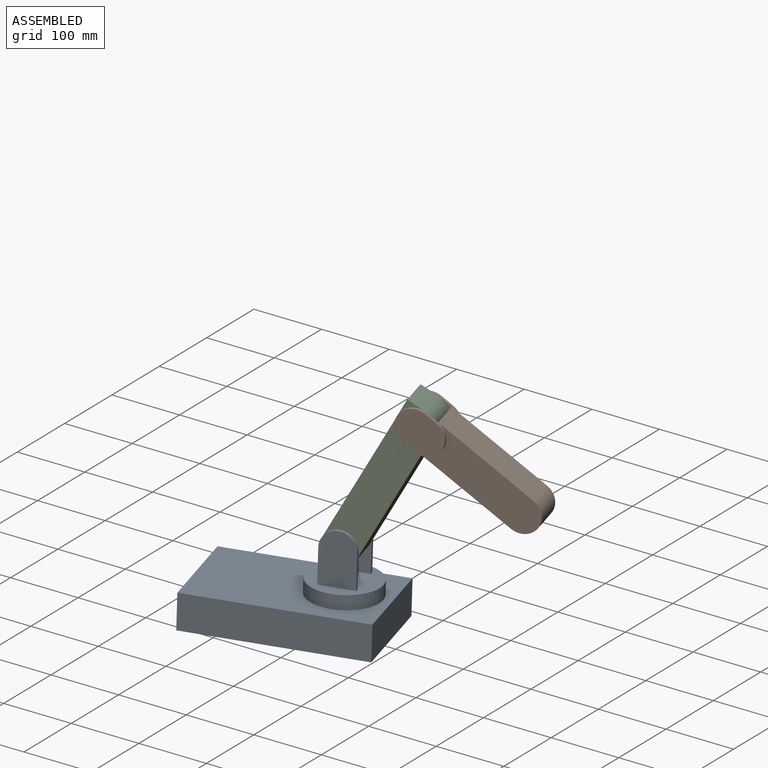
[diagram: assembled view]
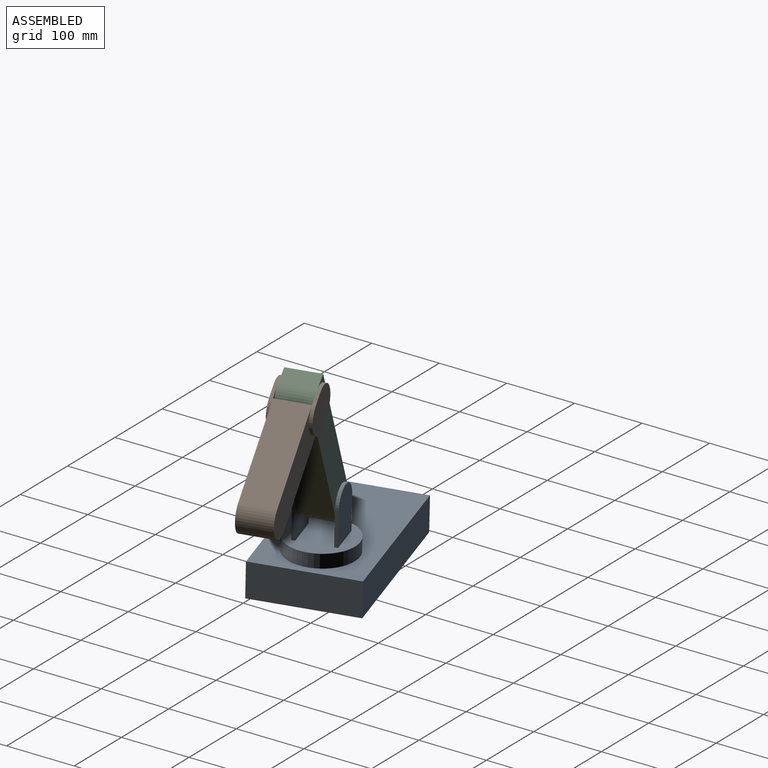
[diagram: assembled view, second angle]
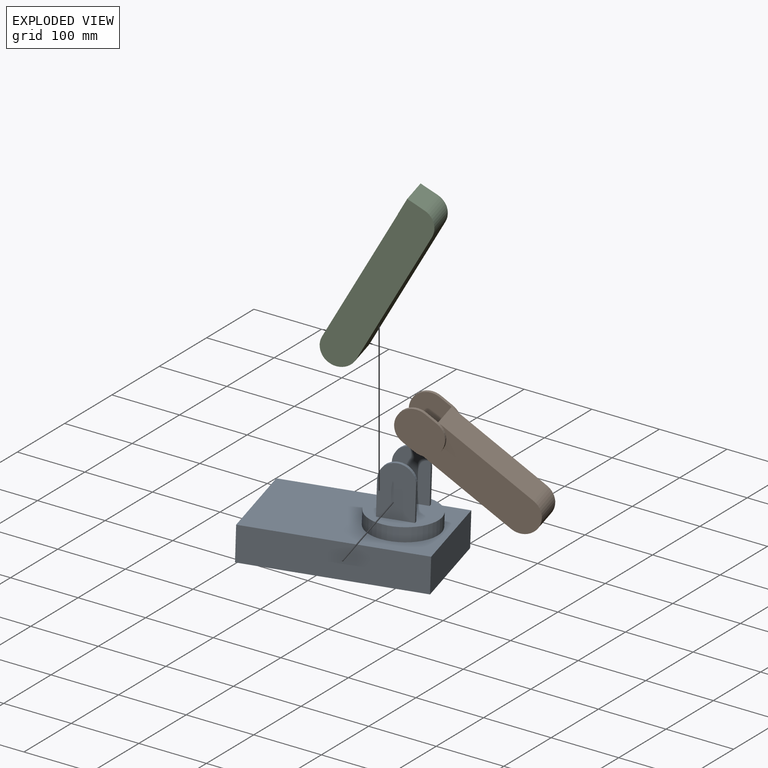
[diagram: exploded view]
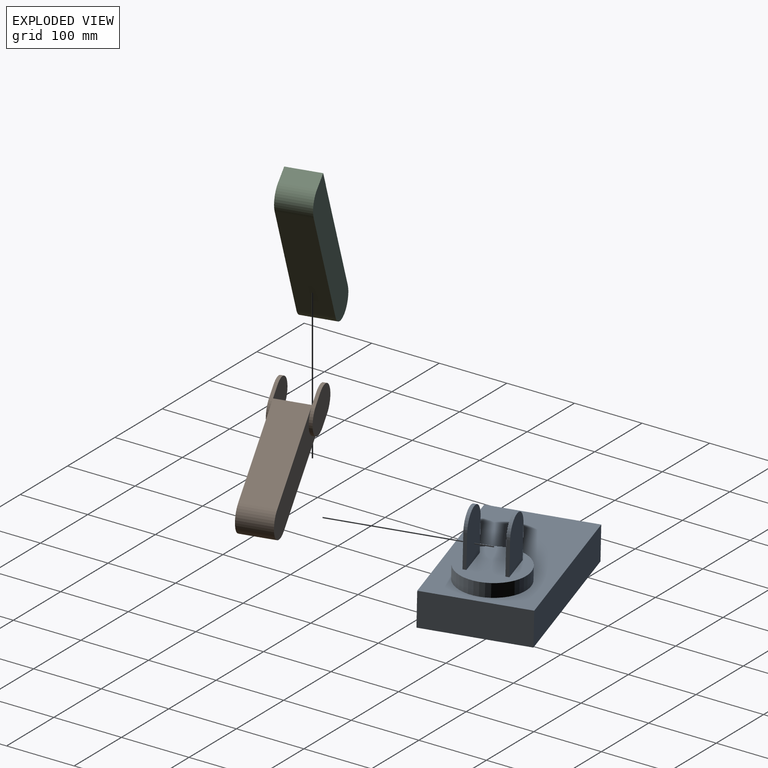
[diagram: exploded view, second angle]
ASSEMBLY  parts=3 mates=2
PART A: 18 faces, bbox 250x150x145 mm
  f0: plane 100x100mm, normal (0,0,1), area 7354mm2, adj f1,f8,f9,f10,f11,f12,f13,f14
  f1: cylinder r=50mm len=100mm, axis (0,0,-1), area 6283.2mm2, adj f0,f6
  f2: plane 250x50mm, normal (0,-1,0), area 12500mm2, adj f3,f5,f6,f7
  f3: plane 150x50mm, normal (1,0,0), area 7500mm2, adj f2,f4,f6,f7
  f4: plane 250x50mm, normal (0,1,0), area 12500mm2, adj f3,f5,f6,f7
  f5: plane 150x50mm, normal (-1,0,0), area 7500mm2, adj f2,f4,f6,f7
  f6: plane 250x150mm, normal (0,0,1), area 29646mm2, adj f1,f2,f3,f4,f5
  f7: plane 250x150mm, normal (0,0,-1), area 37500mm2, adj f2,f3,f4,f5
  f8: plane 50x5mm, normal (1,0,0), area 250mm2, adj f0,f9,f11,f16
  f9: plane 75x50mm, normal (0,1,0), area 3481.7mm2, adj f0,f8,f10,f16
  f10: plane 50x5mm, normal (-1,0,0), area 250mm2, adj f0,f9,f11,f16
  f11: plane 75x50mm, normal (0,-1,0), area 3481.7mm2, adj f0,f8,f10,f16
  f12: plane 75x50mm, normal (0,-1,0), area 3481.7mm2, adj f0,f13,f15,f17
  f13: plane 50x5mm, normal (1,0,0), area 250mm2, adj f0,f12,f14,f17
  f14: plane 75x50mm, normal (0,1,0), area 3481.7mm2, adj f0,f13,f15,f17
  f15: plane 50x5mm, normal (-1,0,0), area 250mm2, adj f0,f12,f14,f17
  f16: cylinder r=25mm len=50mm, axis (0,-1,0), area 392.7mm2, adj f8,f9,f10,f11
  f17: cylinder r=25mm len=50mm, axis (0,1,0), area 392.7mm2, adj f12,f13,f14,f15
PART B: 18 faces, bbox 218.8x60x50 mm
  f0: plane 150x50mm, normal (0,0,1), area 7500mm2, adj f1,f3,f4,f11
  f1: plane 50x50mm, normal (-1,0,0), area 2500mm2, adj f0,f2,f10,f17
  f2: plane 150x50mm, normal (0,0,-1), area 7500mm2, adj f1,f3,f4,f11
  f3: plane 175x50mm, normal (0,-1,0), area 7500mm2, adj f0,f2,f11,f12
  f4: plane 175x50mm, normal (0,1,0), area 7500mm2, adj f0,f2,f5,f11
  f5: cylinder r=25mm len=50mm, axis (0,-1,0), area 392.7mm2, adj f4,f6,f8,f9
  f6: plane 18.75x5mm, normal (0,0,1), area 93.8mm2, adj f5,f7,f9,f10
  f7: cylinder r=25mm len=50mm, axis (0,-1,0), area 392.7mm2, adj f6,f8,f9,f10
  f8: plane 18.75x5mm, normal (0,0,-1), area 93.8mm2, adj f5,f7,f9,f10
  f9: plane 68.75x50mm, normal (0,1,0), area 2901mm2, adj f5,f6,f7,f8
  f10: plane 50x43.75mm, normal (0,-1,0), area 1919.2mm2, adj f1,f6,f7,f8
  f11: cylinder r=25mm len=50mm, axis (0,1,0), area 3927mm2, adj f0,f2,f3,f4
  f12: cylinder r=25mm len=50mm, axis (0,1,0), area 392.7mm2, adj f3,f13,f15,f16
  f13: plane 18.75x5mm, normal (0,0,1), area 93.7mm2, adj f12,f14,f16,f17
  f14: cylinder r=25mm len=50mm, axis (0,1,0), area 392.7mm2, adj f13,f15,f16,f17
  f15: plane 18.75x5mm, normal (0,0,-1), area 93.7mm2, adj f12,f14,f16,f17
  f16: plane 68.75x50mm, normal (0,-1,0), area 2901mm2, adj f12,f13,f14,f15
  f17: plane 50x43.75mm, normal (0,1,0), area 1919.2mm2, adj f1,f13,f14,f15
PART C: 9 faces, bbox 250x50x50.2 mm
  f0: cylinder r=25mm len=50mm, axis (0,1,0), area 1963.5mm2, adj f3,f4,f5,f7
  f1: plane 200x50mm, normal (0,0,1), area 10000mm2, adj f2,f4,f5,f6
  f2: cylinder r=25mm len=50mm, axis (0,1,0), area 3927mm2, adj f1,f3,f4,f5
  f3: plane 200x50mm, normal (0,0,-1), area 10000mm2, adj f0,f2,f4,f5
  f4: plane 250x50.2mm, normal (0,-1,0), area 12102.6mm2, adj f0,f1,f2,f3,f6,f7,f8
  f5: plane 250x50.2mm, normal (0,1,0), area 12102.6mm2, adj f0,f1,f2,f3,f6,f7,f8
  f6: plane 50x0.2mm, normal (-1,0,0), area 10mm2, adj f1,f4,f5,f8
  f7: plane 50x25.2mm, normal (1,0,0), area 1260mm2, adj f0,f4,f5,f8
  f8: plane 50x25mm, normal (0,0,1), area 1250mm2, adj f4,f5,f6,f7
PLACE A rot(axis=(-0.1,0.06,0.99),16.2deg) t=(280.44,-144.52,80.88)mm
PLACE B rot(axis=(-0.17,0.9,0.4),38.1deg) t=(500.47,-48.4,321.04)mm
PLACE C rot(axis=(0.11,-0.96,0.24),63.6deg) t=(380.87,-83.8,286.71)mm
MATE revolute B.f14 <-> C.f0  axis (-0.28,0.96,-0.03) through (439.94,-116.34,375.89)mm
MATE revolute A.f16 <-> C.f2  axis (-0.28,0.96,-0.03) through (349.47,-147.32,200.23)mm
